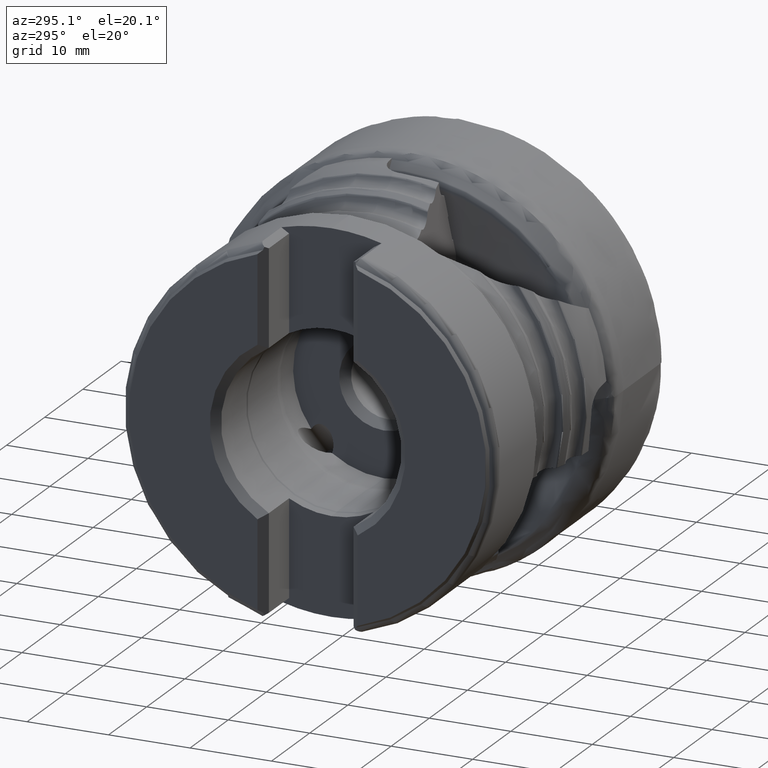
[diagram: clean part render]
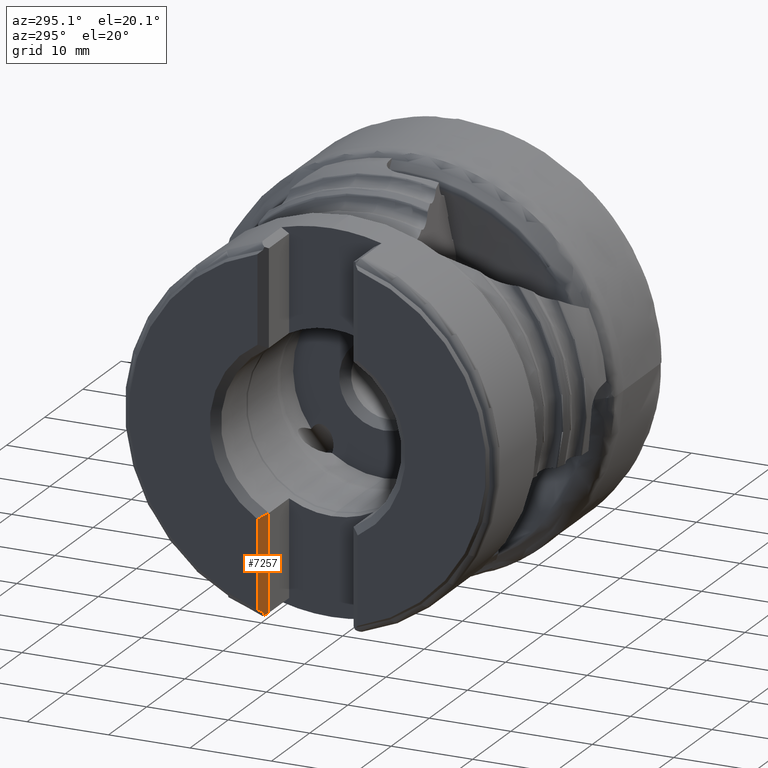
[diagram: same view with one face highlighted and labeled with its STEP entity id]
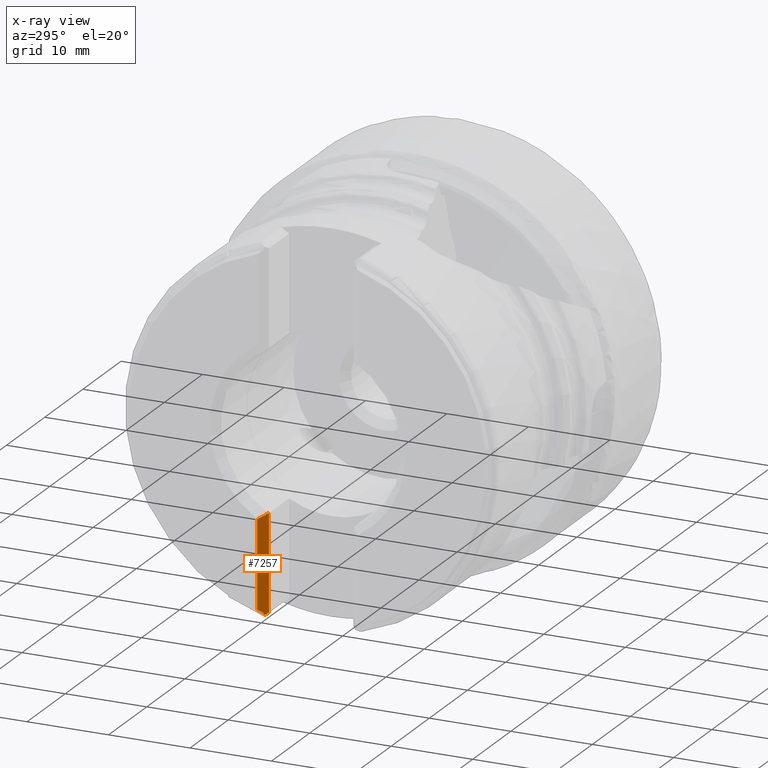
[diagram: x-ray of the same camera — body ghosted, the highlighted face saturated]
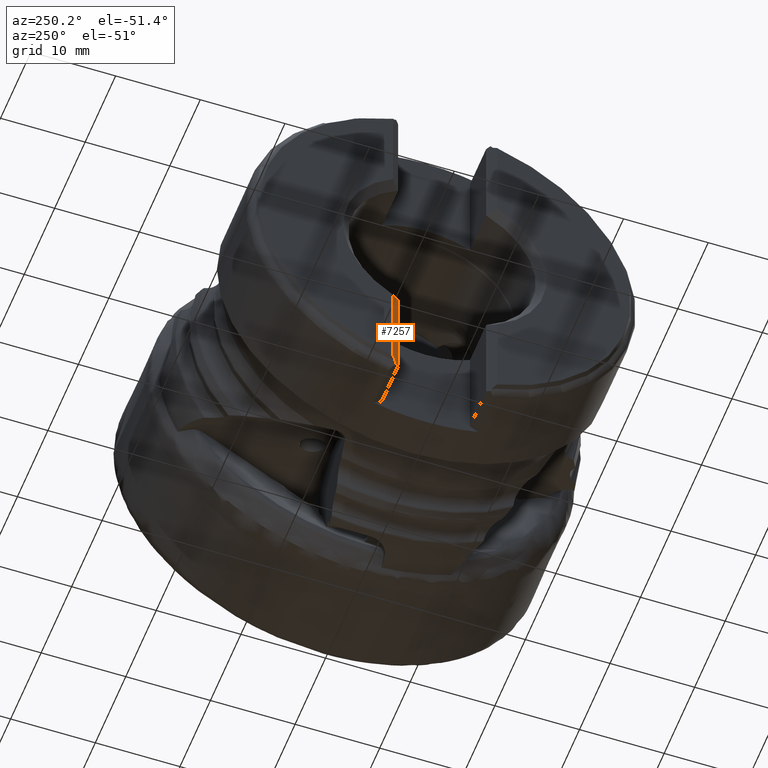
[diagram: same view with one face highlighted and labeled with its STEP entity id]
A machine part, auxiliary view. The second image highlights one B-rep face of the part: STEP entity #7257.
The next image is the same camera in x-ray: the body ghosted, the highlighted face saturated — about 0% of this face is hidden behind the body in this view.
A second angle (auxiliary view) of the same face is appended — the face is thin or edge-on in the first view.
In plain terms, the highlighted planar face has unit normal (0.7071, 0.7071, 0).
Its self-contained STEP definition (entity closure, byte-faithful):
#600 = DIRECTION ( 'NONE',  ( -0.0000000000000000000, -0.0000000000000000000, 1.000000000000000000 ) ) ;
#1070 = B_SPLINE_CURVE_WITH_KNOTS ( 'NONE', 3,
 ( #4116, #13318, #1721, #12342 ),
 .UNSPECIFIED., .F., .F.,
 ( 4, 4 ),
 ( 7.649773688578097400E-005, 0.001530132222374781600 ),
 .UNSPECIFIED. ) ;
#1142 = CARTESIAN_POINT ( 'NONE',  ( -39.15033637317092300, 6.100336373170919500, -21.09620617321997900 ) ) ;
#1151 = CARTESIAN_POINT ( 'NONE',  ( -38.72876197310683500, 5.678761973106830400, -21.46657139491063400 ) ) ;
#1459 = CARTESIAN_POINT ( 'NONE',  ( -39.01103587848916000, 5.961035878489171000, -21.22058362970865300 ) ) ;
#1721 = CARTESIAN_POINT ( 'NONE',  ( -38.56536343124155800, 5.515363431241543600, -9.967800487793343900 ) ) ;
#2001 = VERTEX_POINT ( 'NONE', #3246 ) ;
#2406 = CARTESIAN_POINT ( 'NONE',  ( -39.20000000000001000, 6.150000000000011000, -21.03935804436488500 ) ) ;
#3107 = LINE ( 'NONE', #10238, #13601 ) ;
#3167 = DIRECTION ( 'NONE',  ( 0.0000000000000000000, 0.0000000000000000000, -1.000000000000000000 ) ) ;
#3246 = CARTESIAN_POINT ( 'NONE',  ( -38.25000000000000700, 5.199999999999994800, -21.57126526361857800 ) ) ;
#3605 = DIRECTION ( 'NONE',  ( 0.6470574708015177600, -0.6470574708015227600, 0.4032781409398231200 ) ) ;
#3664 = DIRECTION ( 'NONE',  ( -0.7071067811865448000, 0.7071067811865502400, 0.0000000000000000000 ) ) ;
#3975 = ORIENTED_EDGE ( 'NONE', *, *, #10092, .T. ) ;
#4116 = CARTESIAN_POINT ( 'NONE',  ( -39.20000000000000300, 6.150000000000002100, -10.33335013439494400 ) ) ;
#4446 = VERTEX_POINT ( 'NONE', #13537 ) ;
#4802 = DIRECTION ( 'NONE',  ( 0.7071067811865502400, 0.7071067811865448000, 0.0000000000000000000 ) ) ;
#4808 = CARTESIAN_POINT ( 'NONE',  ( -38.72876197310683500, 5.678761973106830400, -21.46657139491063400 ) ) ;
#4999 = CARTESIAN_POINT ( 'NONE',  ( -38.87050802876630200, 5.820508028766302500, -21.34404138285592000 ) ) ;
#5103 = VERTEX_POINT ( 'NONE', #7137 ) ;
#5336 = EDGE_CURVE ( 'NONE', #2001, #8272, #13198, .T. ) ;
#5350 = VECTOR ( 'NONE', #3605, 999.9999999999998900 ) ;
#5645 = CARTESIAN_POINT ( 'NONE',  ( -39.20000000000001000, 6.150000000000011000, -21.03935804436488500 ) ) ;
#5982 = VERTEX_POINT ( 'NONE', #1151 ) ;
#6011 = ORIENTED_EDGE ( 'NONE', *, *, #9072, .T. ) ;
#6349 = B_SPLINE_CURVE_WITH_KNOTS ( 'NONE', 3,
 ( #4808, #10540, #11747, #7067 ),
 .UNSPECIFIED., .F., .F.,
 ( 4, 4 ),
 ( 0.001376231251695737100, 0.001745192412403750000 ),
 .UNSPECIFIED. ) ;
#6578 = VECTOR ( 'NONE', #600, 1000.000000000000000 ) ;
#6794 = CARTESIAN_POINT ( 'NONE',  ( -39.16845578765570200, 6.118455787655691800, -21.08002786249804600 ) ) ;
#7067 = CARTESIAN_POINT ( 'NONE',  ( -38.61650627585940000, 5.566506275859394400, -21.79969005776905200 ) ) ;
#7137 = CARTESIAN_POINT ( 'NONE',  ( -38.61650627585940000, 5.566506275859394400, -21.79969005776905200 ) ) ;
#7217 = B_SPLINE_CURVE_WITH_KNOTS ( 'NONE', 3,
 ( #5645, #13886, #6794, #1142 ),
 .UNSPECIFIED., .F., .F.,
 ( 4, 4 ),
 ( 0.0004023888811967804700, 0.0004926447498636222400 ),
 .UNSPECIFIED. ) ;
#7257 = ADVANCED_FACE ( 'NONE', ( #11896 ), #8448, .F. ) ;
#7411 = CARTESIAN_POINT ( 'NONE',  ( -39.15033637317092300, 6.100336373170919500, -21.09620617321997900 ) ) ;
#8272 = VERTEX_POINT ( 'NONE', #9941 ) ;
#8385 = ORIENTED_EDGE ( 'NONE', *, *, #13606, .F. ) ;
#8448 = PLANE ( 'NONE',  #11512 ) ;
#8676 = EDGE_CURVE ( 'NONE', #5982, #5103, #6349, .T. ) ;
#9072 = EDGE_CURVE ( 'NONE', #13515, #9606, #7217, .T. ) ;
#9082 =( BOUNDED_CURVE ( )  B_SPLINE_CURVE ( 3, ( #7411, #1459, #4999, #13311 ),
 .UNSPECIFIED., .F., .F. ) 
 B_SPLINE_CURVE_WITH_KNOTS ( ( 4, 4 ),
 ( 3.881216656819594000, 3.897354268768807200 ),
 .UNSPECIFIED. ) 
 CURVE ( )  GEOMETRIC_REPRESENTATION_ITEM ( )  RATIONAL_B_SPLINE_CURVE ( ( 1.000000000000000000, 0.9999782982411239400, 0.9999782982411239400, 1.000000000000000000 ) ) 
 REPRESENTATION_ITEM ( '' )  );
#9571 = CARTESIAN_POINT ( 'NONE',  ( -39.15033637317092300, 6.100336373170919500, -21.09620617321997900 ) ) ;
#9606 = VERTEX_POINT ( 'NONE', #9571 ) ;
#9941 = CARTESIAN_POINT ( 'NONE',  ( -38.25000000000000700, 5.199999999999994800, -9.778324242936523800 ) ) ;
#10092 = EDGE_CURVE ( 'NONE', #5103, #2001, #14749, .T. ) ;
#10225 = EDGE_CURVE ( 'NONE', #9606, #5982, #9082, .T. ) ;
#10236 = ORIENTED_EDGE ( 'NONE', *, *, #5336, .T. ) ;
#10238 = CARTESIAN_POINT ( 'NONE',  ( -39.20000000000000300, 6.150000000000002100, -25.00000000000000000 ) ) ;
#10540 = CARTESIAN_POINT ( 'NONE',  ( -38.70567813075715000, 5.655678130757143800, -21.58668181329923300 ) ) ;
#10698 = CARTESIAN_POINT ( 'NONE',  ( -39.25000000000000000, 6.199999999999996600, -25.00000000000000000 ) ) ;
#10856 = ORIENTED_EDGE ( 'NONE', *, *, #10225, .T. ) ;
#11298 = ORIENTED_EDGE ( 'NONE', *, *, #8676, .T. ) ;
#11316 = EDGE_LOOP ( 'NONE', ( #8385, #14675, #6011, #10856, #11298, #3975, #10236 ) ) ;
#11512 = AXIS2_PLACEMENT_3D ( 'NONE', #10698, #4802, #3664 ) ;
#11747 = CARTESIAN_POINT ( 'NONE',  ( -38.66645575159113700, 5.616455751591130900, -21.69744574851099700 ) ) ;
#11896 = FACE_OUTER_BOUND ( 'NONE', #11316, .T. ) ;
#11979 = EDGE_CURVE ( 'NONE', #4446, #13515, #3107, .T. ) ;
#12342 = CARTESIAN_POINT ( 'NONE',  ( -38.25000000000000700, 5.199999999999994800, -9.778324242936523800 ) ) ;
#12418 = CARTESIAN_POINT ( 'NONE',  ( -38.25000000000000700, 5.199999999999994800, -25.00000000000000000 ) ) ;
#13198 = LINE ( 'NONE', #12418, #6578 ) ;
#13311 = CARTESIAN_POINT ( 'NONE',  ( -38.72876197310683500, 5.678761973106830400, -21.46657139491063400 ) ) ;
#13318 = CARTESIAN_POINT ( 'NONE',  ( -38.88209013954436000, 5.832090139544352100, -10.15260328986868100 ) ) ;
#13515 = VERTEX_POINT ( 'NONE', #2406 ) ;
#13537 = CARTESIAN_POINT ( 'NONE',  ( -39.20000000000000300, 6.150000000000002100, -10.33335013439494400 ) ) ;
#13601 = VECTOR ( 'NONE', #3167, 1000.000000000000000 ) ;
#13606 = EDGE_CURVE ( 'NONE', #4446, #8272, #1070, .T. ) ;
#13886 = CARTESIAN_POINT ( 'NONE',  ( -39.18531744512495900, 6.135317445124957000, -21.06099502826290100 ) ) ;
#14245 = CARTESIAN_POINT ( 'NONE',  ( -22.23536107760782300, -10.81463892239230900, -11.59015214171178500 ) ) ;
#14675 = ORIENTED_EDGE ( 'NONE', *, *, #11979, .T. ) ;
#14749 = LINE ( 'NONE', #14245, #5350 ) ;